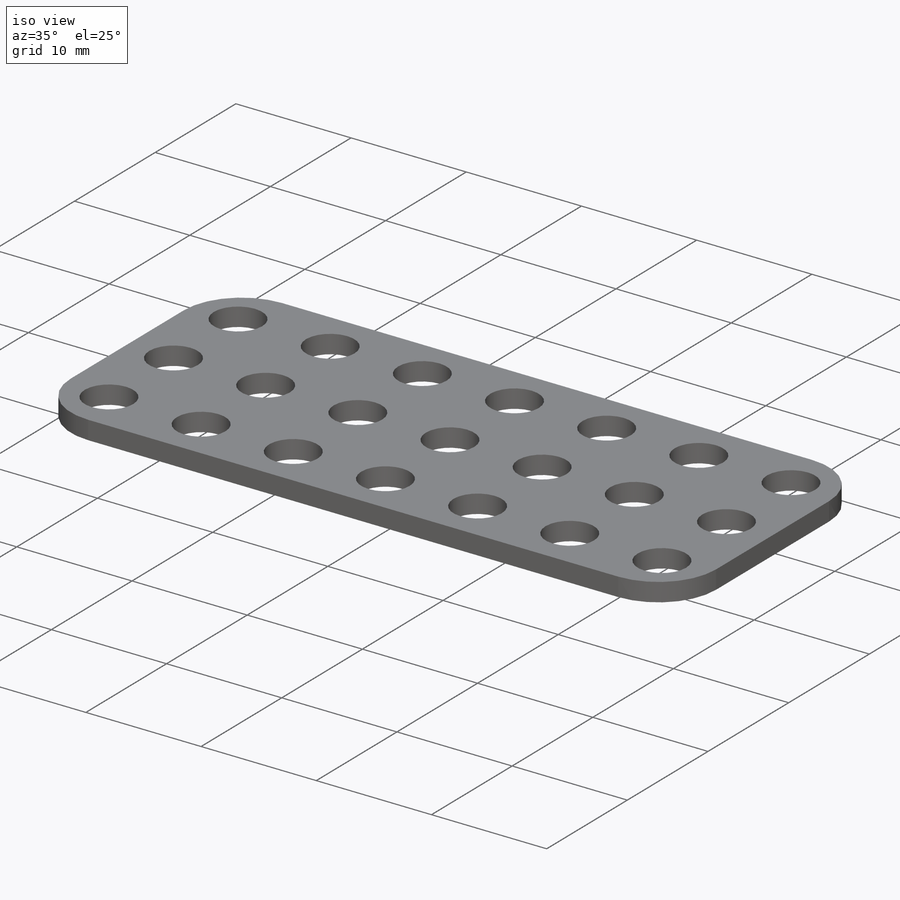
[diagram: iso view]
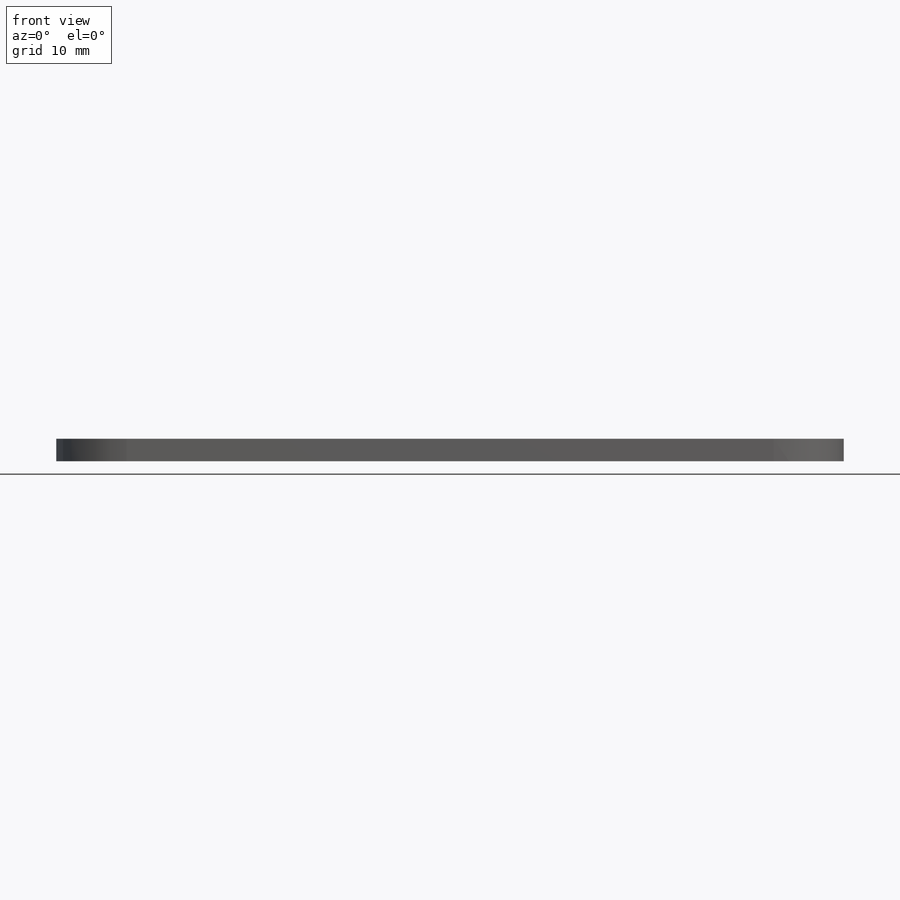
[diagram: front view]
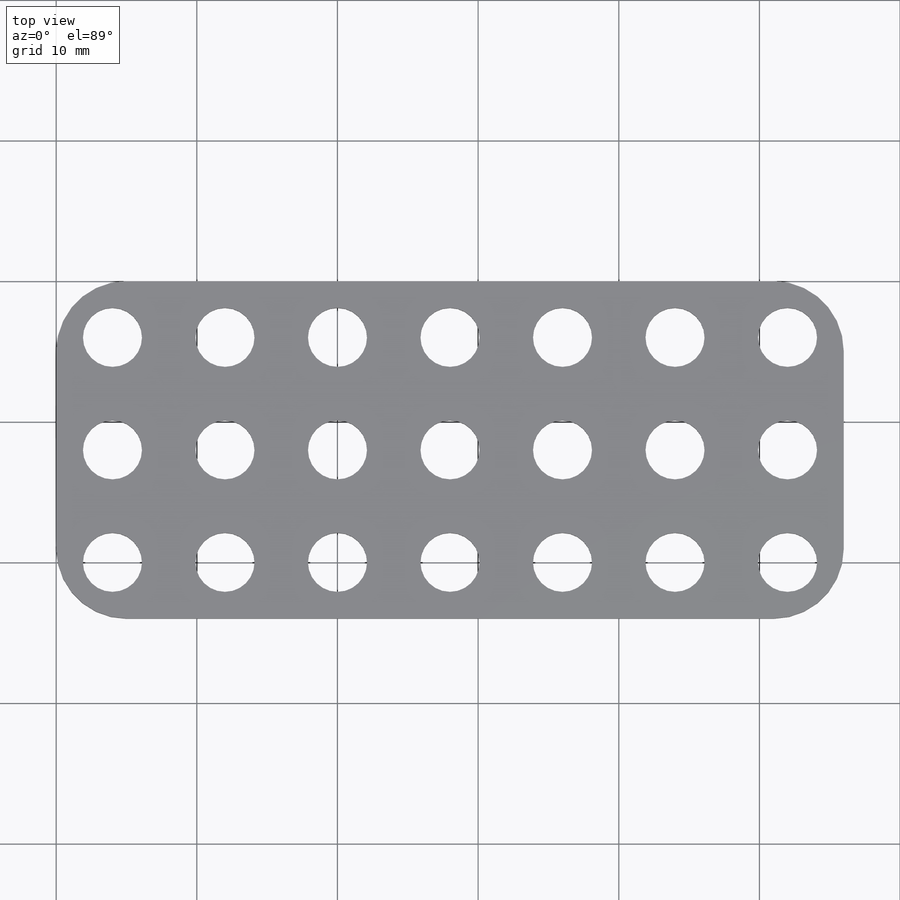
[diagram: top view]
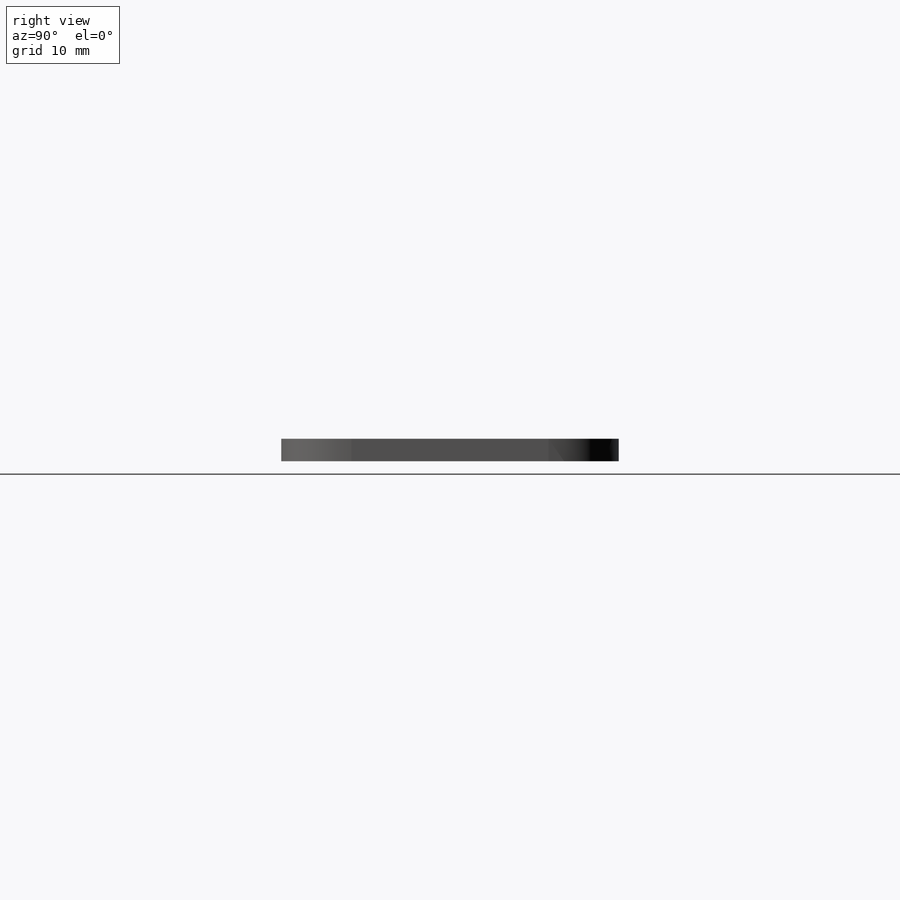
[diagram: right view]
SOLIDWORKS PART (.sldprt)
format: sldprt  version: not decoded by parser v0  size: 1,359,872 bytes
history: native  units: mm
features: sketch x2, material x1, extrude x1, fillet x1, cut_extrude x1, pattern_linear x1 + 1 further entry (+13 scaffold rows collapsed)
feature tree (21):
  scaffold x13  (default folders/planes/origin — collapsed)
  material  "1060 Alloy"
  "Design Table"
  sketch  "Sketch1"  dims[D1=24.0mm D2=72.0mm]
  extrude  "Boss-Extrude1"  Depth=1.6mm
  fillet  "Fillet1"  Radius=5mm
  sketch  "Sketch2"  dims[D1=4.2mm D2=4.0mm D3=4.0mm]
  cut_extrude  "Cut-Extrude1"  [1 undecoded]
  pattern_linear  "LPattern1"  Count1=9 Count2=3 Spacing1=8mm Spacing2=8mm
decode coverage: 5 of 6 modeling features carry decoded parameters; 1 rows unclassified (native names shown)
note: 1 parameter value undecoded
note: suppression state not decoded; provenance and decode notes live in map.json
